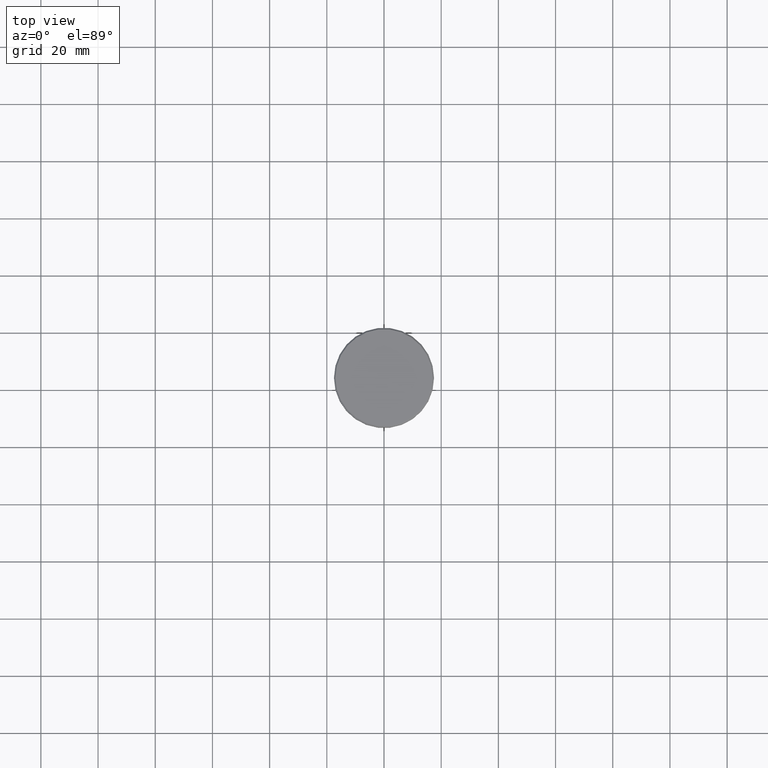
[diagram: clean part render]
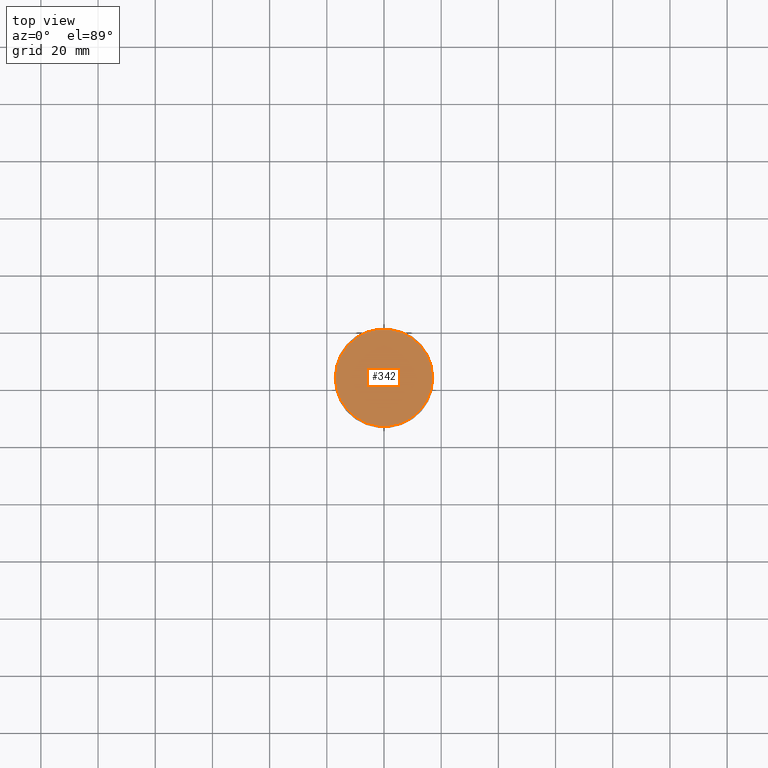
[diagram: same view with one face highlighted and labeled with its STEP entity id]
A machine part, top view. The second image highlights one B-rep face of the part: STEP entity #342.
In plain terms, the highlighted planar face has unit normal (0, -0, 1).
Its self-contained STEP definition (entity closure, byte-faithful):
#5 = EDGE_CURVE ( 'NONE', #955, #411, #703, .T. ) ;
#42 = DIRECTION ( 'NONE',  ( 1.000000000000000000, 0.000000000000000000, 0.000000000000000000 ) ) ;
#109 = AXIS2_PLACEMENT_3D ( 'NONE', #465, #374, #740 ) ;
#164 = CARTESIAN_POINT ( 'NONE',  ( 0.000000000000000000, 0.000000000000000000, 0.000000000000000000 ) ) ;
#171 = AXIS2_PLACEMENT_3D ( 'NONE', #406, #870, #42 ) ;
#205 = AXIS2_PLACEMENT_3D ( 'NONE', #164, #527, #890 ) ;
#342 = ADVANCED_FACE ( 'NONE', ( #827 ), #926, .T. ) ;
#374 = DIRECTION ( 'NONE',  ( 0.000000000000000000, -0.000000000000000000, 1.000000000000000000 ) ) ;
#406 = CARTESIAN_POINT ( 'NONE',  ( 0.000000000000000000, 0.000000000000000000, 0.000000000000000000 ) ) ;
#411 = VERTEX_POINT ( 'NONE', #874 ) ;
#465 = CARTESIAN_POINT ( 'NONE',  ( 0.000000000000000000, 0.000000000000000000, 0.000000000000000000 ) ) ;
#527 = DIRECTION ( 'NONE',  ( -0.000000000000000000, -0.000000000000000000, 1.000000000000000000 ) ) ;
#539 = CARTESIAN_POINT ( 'NONE',  ( 16.99999999999996092, 2.112515728529182095E-15, 0.000000000000000000 ) ) ;
#542 = EDGE_LOOP ( 'NONE', ( #650, #997 ) ) ;
#566 = CIRCLE ( 'NONE', #205, 16.99999999999996092 ) ;
#650 = ORIENTED_EDGE ( 'NONE', *, *, #1086, .T. ) ;
#703 = CIRCLE ( 'NONE', #171, 16.99999999999996092 ) ;
#740 = DIRECTION ( 'NONE',  ( 1.000000000000000000, 0.000000000000000000, 0.000000000000000000 ) ) ;
#827 = FACE_OUTER_BOUND ( 'NONE', #542, .T. ) ;
#870 = DIRECTION ( 'NONE',  ( -0.000000000000000000, -0.000000000000000000, 1.000000000000000000 ) ) ;
#874 = CARTESIAN_POINT ( 'NONE',  ( -16.99999999999996092, 0.000000000000000000, 0.000000000000000000 ) ) ;
#890 = DIRECTION ( 'NONE',  ( 1.000000000000000000, 0.000000000000000000, 0.000000000000000000 ) ) ;
#926 = PLANE ( 'NONE',  #109 ) ;
#955 = VERTEX_POINT ( 'NONE', #539 ) ;
#997 = ORIENTED_EDGE ( 'NONE', *, *, #5, .T. ) ;
#1086 = EDGE_CURVE ( 'NONE', #411, #955, #566, .T. ) ;